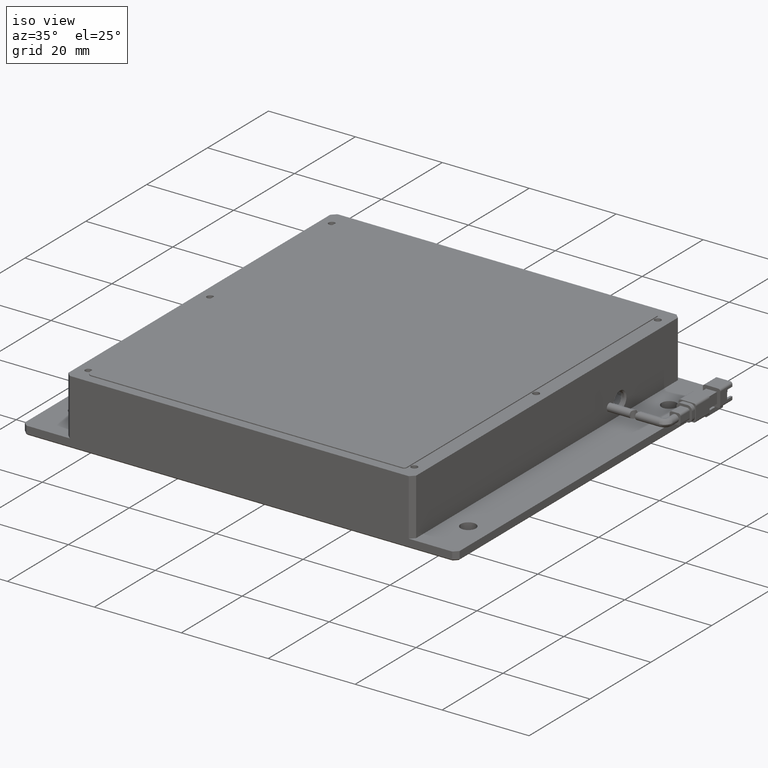
[diagram: clean part render]
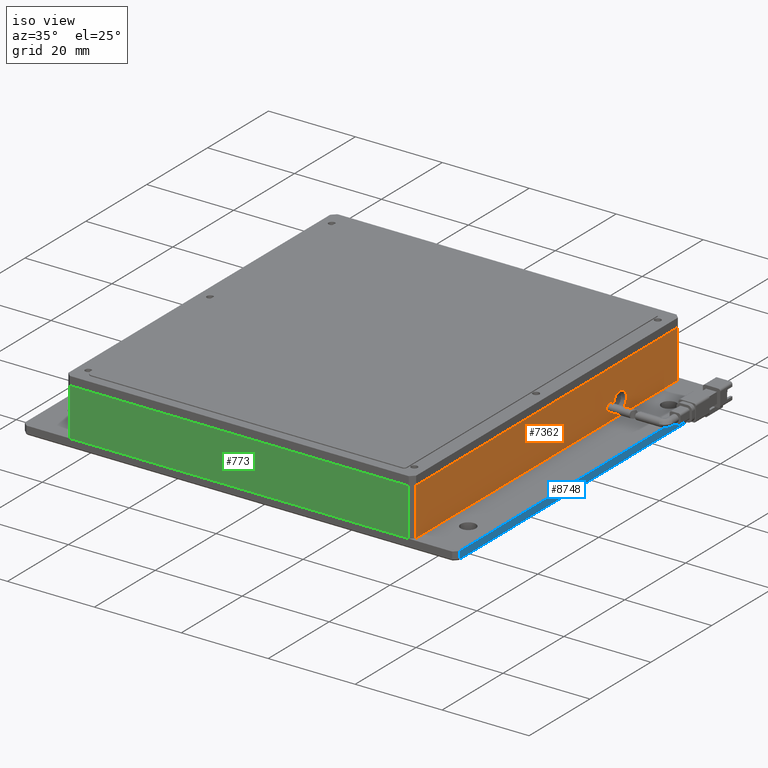
[diagram: same view with three faces highlighted in distinct colors, each labeled with its STEP entity id]
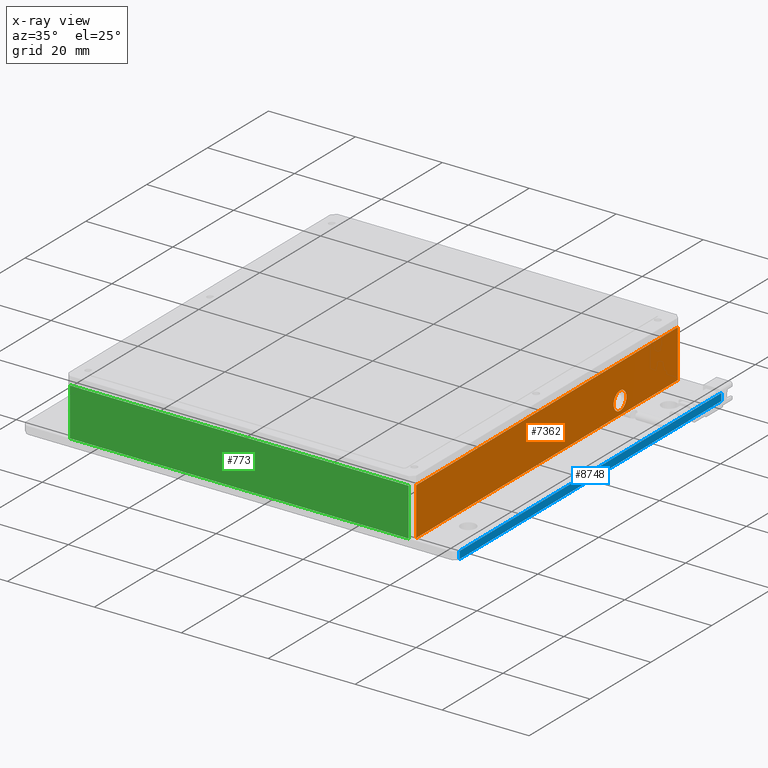
[diagram: x-ray of the same camera — body ghosted, the three highlighted faces saturated]
A machine part, iso view with three faces highlighted in distinct colors.
The next image is the same camera in x-ray (body ghosted, the three faces saturated) — at least one of them is partly hidden behind the body in this view.
Their STEP definitions:

[orange] entity #7362 — the highlighted planar face has unit normal (-1, 0, 0).
#145 = LINE ( 'NONE', #2818, #7615 ) ;
#359 = CIRCLE ( 'NONE', #9068, 2.099999999984447600 ) ;
#884 = AXIS2_PLACEMENT_3D ( 'NONE', #8168, #17584, #9544 ) ;
#2003 = DIRECTION ( 'NONE',  ( -0.0000000000000000000, -1.000000000000000000, 0.0000000000000000000 ) ) ;
#2138 = CARTESIAN_POINT ( 'NONE',  ( 57.05231004200075500, 38.79992363497520100, 10.99999999999545100 ) ) ;
#2569 = DIRECTION ( 'NONE',  ( 0.0000000000000000000, 0.0000000000000000000, -1.000000000000000000 ) ) ;
#2606 = DIRECTION ( 'NONE',  ( 1.000000000000000000, 0.0000000000000000000, 0.0000000000000000000 ) ) ;
#2663 = CARTESIAN_POINT ( 'NONE',  ( 57.05231004197073500, 19.79992363497521500, 2.999999999995452500 ) ) ;
#2676 = DIRECTION ( 'NONE',  ( 0.0000000000000000000, 0.0000000000000000000, 1.000000000000000000 ) ) ;
#2766 = EDGE_CURVE ( 'NONE', #13119, #14216, #145, .T. ) ;
#2818 = CARTESIAN_POINT ( 'NONE',  ( 57.05231004200075500, -47.20007636502478500, 10.99999999999545100 ) ) ;
#3176 = VECTOR ( 'NONE', #12867, 1000.000000000000000 ) ;
#3298 = CARTESIAN_POINT ( 'NONE',  ( 57.05231004200076900, 39.79992363497522200, 10.99999999999545100 ) ) ;
#3580 = DIRECTION ( 'NONE',  ( -0.0000000000000000000, -0.0000000000000000000, -1.000000000000000000 ) ) ;
#3636 = LINE ( 'NONE', #3298, #3176 ) ;
#3907 = PLANE ( 'NONE',  #884 ) ;
#4731 = EDGE_CURVE ( 'NONE', #16465, #16367, #359, .T. ) ;
#4761 = CARTESIAN_POINT ( 'NONE',  ( 57.05231004197073500, 19.79992363497521500, 0.9000000000110074400 ) ) ;
#4904 = VERTEX_POINT ( 'NONE', #8523 ) ;
#5454 = EDGE_CURVE ( 'NONE', #8713, #14216, #3636, .T. ) ;
#5652 = CARTESIAN_POINT ( 'NONE',  ( 57.05231004200076900, 38.79992363497521500, 10.99999999999545100 ) ) ;
#6573 = ORIENTED_EDGE ( 'NONE', *, *, #4731, .F. ) ;
#7362 = ADVANCED_FACE ( 'NONE', ( #9783, #13340 ), #3907, .F. ) ;
#7422 = DIRECTION ( 'NONE',  ( 1.000000000000000000, 0.0000000000000000000, 0.0000000000000000000 ) ) ;
#7615 = VECTOR ( 'NONE', #2676, 1000.000000000000000 ) ;
#7716 = CARTESIAN_POINT ( 'NONE',  ( 57.05231004197073500, 19.79992363497521500, 5.099999999979897500 ) ) ;
#8153 = VECTOR ( 'NONE', #3580, 1000.000000000000000 ) ;
#8168 = CARTESIAN_POINT ( 'NONE',  ( 57.05231004200075500, -48.20007636502477800, 10.99999999999545100 ) ) ;
#8523 = CARTESIAN_POINT ( 'NONE',  ( 57.05231004200075500, 38.79992363497521500, -4.550179677487165000E-012 ) ) ;
#8713 = VERTEX_POINT ( 'NONE', #5652 ) ;
#8779 = ORIENTED_EDGE ( 'NONE', *, *, #2766, .F. ) ;
#9055 = CARTESIAN_POINT ( 'NONE',  ( 57.05231004200074100, -47.20007636502480600, -4.548228113576691100E-012 ) ) ;
#9068 = AXIS2_PLACEMENT_3D ( 'NONE', #2663, #2606, #2569 ) ;
#9518 = EDGE_CURVE ( 'NONE', #8713, #4904, #15337, .T. ) ;
#9544 = DIRECTION ( 'NONE',  ( 0.0000000000000000000, 0.0000000000000000000, 1.000000000000000000 ) ) ;
#9783 = FACE_OUTER_BOUND ( 'NONE', #16908, .T. ) ;
#10050 = EDGE_LOOP ( 'NONE', ( #15164, #6573 ) ) ;
#10186 = VECTOR ( 'NONE', #2003, 1000.000000000000000 ) ;
#11252 = ORIENTED_EDGE ( 'NONE', *, *, #9518, .F. ) ;
#11423 = EDGE_CURVE ( 'NONE', #4904, #13119, #17330, .T. ) ;
#12361 = ORIENTED_EDGE ( 'NONE', *, *, #11423, .F. ) ;
#12867 = DIRECTION ( 'NONE',  ( -0.0000000000000000000, -1.000000000000000000, -0.0000000000000000000 ) ) ;
#13119 = VERTEX_POINT ( 'NONE', #9055 ) ;
#13340 = FACE_BOUND ( 'NONE', #10050, .T. ) ;
#14121 = CARTESIAN_POINT ( 'NONE',  ( 57.05231004200076900, -47.20007636502479200, 10.99999999999545100 ) ) ;
#14211 = CIRCLE ( 'NONE', #17432, 2.099999999984447600 ) ;
#14216 = VERTEX_POINT ( 'NONE', #14121 ) ;
#14685 = EDGE_CURVE ( 'NONE', #16367, #16465, #14211, .T. ) ;
#15164 = ORIENTED_EDGE ( 'NONE', *, *, #14685, .F. ) ;
#15337 = LINE ( 'NONE', #2138, #8153 ) ;
#15381 = ORIENTED_EDGE ( 'NONE', *, *, #5454, .T. ) ;
#15540 = CARTESIAN_POINT ( 'NONE',  ( 57.05231004197073500, 19.79992363497521500, 2.999999999995452500 ) ) ;
#15706 = CARTESIAN_POINT ( 'NONE',  ( 57.05231004200075500, -48.20007636502477800, -4.547577592273199800E-012 ) ) ;
#16367 = VERTEX_POINT ( 'NONE', #4761 ) ;
#16465 = VERTEX_POINT ( 'NONE', #7716 ) ;
#16875 = DIRECTION ( 'NONE',  ( 0.0000000000000000000, 0.0000000000000000000, -1.000000000000000000 ) ) ;
#16908 = EDGE_LOOP ( 'NONE', ( #8779, #12361, #11252, #15381 ) ) ;
#17330 = LINE ( 'NONE', #15706, #10186 ) ;
#17432 = AXIS2_PLACEMENT_3D ( 'NONE', #15540, #7422, #16875 ) ;
#17584 = DIRECTION ( 'NONE',  ( -1.000000000000000000, 0.0000000000000000000, 0.0000000000000000000 ) ) ;

[blue] entity #8748 — the highlighted planar face has unit normal (-1, 0, 0).
#770 = VECTOR ( 'NONE', #2473, 1000.000000000000000 ) ;
#1243 = EDGE_CURVE ( 'NONE', #10454, #2844, #7160, .T. ) ;
#2351 = ORIENTED_EDGE ( 'NONE', *, *, #8019, .F. ) ;
#2473 = DIRECTION ( 'NONE',  ( 0.0000000000000000000, 0.0000000000000000000, 1.000000000000000000 ) ) ;
#2844 = VERTEX_POINT ( 'NONE', #16433 ) ;
#2901 = VERTEX_POINT ( 'NONE', #17803 ) ;
#4090 = EDGE_CURVE ( 'NONE', #10823, #2901, #10219, .T. ) ;
#4737 = ORIENTED_EDGE ( 'NONE', *, *, #1243, .T. ) ;
#5762 = DIRECTION ( 'NONE',  ( -1.000000000000000000, 0.0000000000000000000, 0.0000000000000000000 ) ) ;
#6583 = VECTOR ( 'NONE', #17267, 1000.000000000000000 ) ;
#6736 = CARTESIAN_POINT ( 'NONE',  ( 67.05231004200074100, -47.20007636502479900, -4.547577592273199800E-012 ) ) ;
#7124 = FACE_OUTER_BOUND ( 'NONE', #10285, .T. ) ;
#7160 = LINE ( 'NONE', #8245, #10811 ) ;
#7968 = CARTESIAN_POINT ( 'NONE',  ( 67.05231004200074100, 38.79992363497520800, -4.547577592273199800E-012 ) ) ;
#8019 = EDGE_CURVE ( 'NONE', #2901, #2844, #15840, .T. ) ;
#8245 = CARTESIAN_POINT ( 'NONE',  ( 67.05231004200074100, 39.79992363497521500, -4.547577592273199800E-012 ) ) ;
#8294 = ORIENTED_EDGE ( 'NONE', *, *, #4090, .F. ) ;
#8346 = LINE ( 'NONE', #7968, #15545 ) ;
#8439 = PLANE ( 'NONE',  #14604 ) ;
#8748 = ADVANCED_FACE ( 'NONE', ( #7124 ), #8439, .F. ) ;
#9586 = EDGE_CURVE ( 'NONE', #10454, #10823, #8346, .T. ) ;
#10219 = LINE ( 'NONE', #17538, #6583 ) ;
#10285 = EDGE_LOOP ( 'NONE', ( #8294, #13907, #4737, #2351 ) ) ;
#10454 = VERTEX_POINT ( 'NONE', #11597 ) ;
#10811 = VECTOR ( 'NONE', #14833, 1000.000000000000000 ) ;
#10823 = VERTEX_POINT ( 'NONE', #16705 ) ;
#11597 = CARTESIAN_POINT ( 'NONE',  ( 67.05231004200074100, 38.79992363497520800, -4.547577592273199800E-012 ) ) ;
#13885 = CARTESIAN_POINT ( 'NONE',  ( 67.05231004200074100, -48.20007636502478500, -4.547577592273199800E-012 ) ) ;
#13907 = ORIENTED_EDGE ( 'NONE', *, *, #9586, .F. ) ;
#14604 = AXIS2_PLACEMENT_3D ( 'NONE', #13885, #5762, #15239 ) ;
#14833 = DIRECTION ( 'NONE',  ( -0.0000000000000000000, -1.000000000000000000, -0.0000000000000000000 ) ) ;
#15239 = DIRECTION ( 'NONE',  ( 0.0000000000000000000, 0.0000000000000000000, 1.000000000000000000 ) ) ;
#15545 = VECTOR ( 'NONE', #17389, 1000.000000000000000 ) ;
#15840 = LINE ( 'NONE', #6736, #770 ) ;
#16433 = CARTESIAN_POINT ( 'NONE',  ( 67.05231004200074100, -47.20007636502479900, -4.547577592273199800E-012 ) ) ;
#16705 = CARTESIAN_POINT ( 'NONE',  ( 67.05231004200074100, 38.79992363497520800, -1.700000000004544500 ) ) ;
#17267 = DIRECTION ( 'NONE',  ( -0.0000000000000000000, -1.000000000000000000, 0.0000000000000000000 ) ) ;
#17389 = DIRECTION ( 'NONE',  ( -0.0000000000000000000, -0.0000000000000000000, -1.000000000000000000 ) ) ;
#17538 = CARTESIAN_POINT ( 'NONE',  ( 67.05231004200074100, -48.20007636502478500, -1.700000000004553000 ) ) ;
#17803 = CARTESIAN_POINT ( 'NONE',  ( 67.05231004200074100, -47.20007636502479900, -1.700000000004553400 ) ) ;

[green] entity #773 — the highlighted planar face has unit normal (0, 1, 0).
#554 = EDGE_CURVE ( 'NONE', #3276, #13863, #3525, .T. ) ;
#773 = ADVANCED_FACE ( 'NONE', ( #7453 ), #5412, .F. ) ;
#1260 = LINE ( 'NONE', #4415, #5013 ) ;
#1890 = LINE ( 'NONE', #11377, #16071 ) ;
#3276 = VERTEX_POINT ( 'NONE', #5067 ) ;
#3525 = LINE ( 'NONE', #9772, #7669 ) ;
#3671 = VECTOR ( 'NONE', #16054, 1000.000000000000000 ) ;
#3675 = ORIENTED_EDGE ( 'NONE', *, *, #11876, .F. ) ;
#3863 = DIRECTION ( 'NONE',  ( 0.0000000000000000000, -0.0000000000000000000, 1.000000000000000000 ) ) ;
#3912 = DIRECTION ( 'NONE',  ( 0.0000000000000000000, 1.000000000000000000, 0.0000000000000000000 ) ) ;
#3928 = CARTESIAN_POINT ( 'NONE',  ( -22.94768995799924800, -48.20007636502477800, 10.99999999999545100 ) ) ;
#4415 = CARTESIAN_POINT ( 'NONE',  ( 56.05231004200073400, -48.20007636502477800, 10.99999999999545100 ) ) ;
#4543 = DIRECTION ( 'NONE',  ( 0.0000000000000000000, -0.0000000000000000000, 1.000000000000000000 ) ) ;
#5013 = VECTOR ( 'NONE', #12583, 1000.000000000000000 ) ;
#5029 = EDGE_CURVE ( 'NONE', #6687, #6999, #14146, .T. ) ;
#5067 = CARTESIAN_POINT ( 'NONE',  ( 56.05231004200073400, -48.20007636502477800, 10.99999999999545100 ) ) ;
#5412 = PLANE ( 'NONE',  #13126 ) ;
#6283 = ORIENTED_EDGE ( 'NONE', *, *, #8263, .F. ) ;
#6319 = EDGE_LOOP ( 'NONE', ( #6283, #9390, #3675, #17229 ) ) ;
#6687 = VERTEX_POINT ( 'NONE', #10563 ) ;
#6999 = VERTEX_POINT ( 'NONE', #13967 ) ;
#7453 = FACE_OUTER_BOUND ( 'NONE', #6319, .T. ) ;
#7669 = VECTOR ( 'NONE', #10803, 1000.000000000000000 ) ;
#8263 = EDGE_CURVE ( 'NONE', #6999, #13863, #1890, .T. ) ;
#9390 = ORIENTED_EDGE ( 'NONE', *, *, #5029, .F. ) ;
#9772 = CARTESIAN_POINT ( 'NONE',  ( -22.94768995799924800, -48.20007636502477800, 10.99999999999545100 ) ) ;
#10563 = CARTESIAN_POINT ( 'NONE',  ( 56.05231004200073400, -48.20007636502477800, -4.550179677487165000E-012 ) ) ;
#10803 = DIRECTION ( 'NONE',  ( -1.000000000000000000, 0.0000000000000000000, -0.0000000000000000000 ) ) ;
#11377 = CARTESIAN_POINT ( 'NONE',  ( -21.94768995799924800, -48.20007636502477800, 10.99999999999545100 ) ) ;
#11876 = EDGE_CURVE ( 'NONE', #3276, #6687, #1260, .T. ) ;
#12583 = DIRECTION ( 'NONE',  ( -0.0000000000000000000, 0.0000000000000000000, -1.000000000000000000 ) ) ;
#13126 = AXIS2_PLACEMENT_3D ( 'NONE', #3928, #3912, #3863 ) ;
#13762 = CARTESIAN_POINT ( 'NONE',  ( -21.94768995799925900, -48.20007636502477800, 10.99999999999545100 ) ) ;
#13863 = VERTEX_POINT ( 'NONE', #13762 ) ;
#13967 = CARTESIAN_POINT ( 'NONE',  ( -21.94768995799925200, -48.20007636502477800, -4.548228113576691100E-012 ) ) ;
#14146 = LINE ( 'NONE', #15911, #3671 ) ;
#15911 = CARTESIAN_POINT ( 'NONE',  ( -22.94768995799924800, -48.20007636502477800, -4.547577592273199800E-012 ) ) ;
#16054 = DIRECTION ( 'NONE',  ( -1.000000000000000000, -0.0000000000000000000, 0.0000000000000000000 ) ) ;
#16071 = VECTOR ( 'NONE', #4543, 1000.000000000000000 ) ;
#17229 = ORIENTED_EDGE ( 'NONE', *, *, #554, .T. ) ;